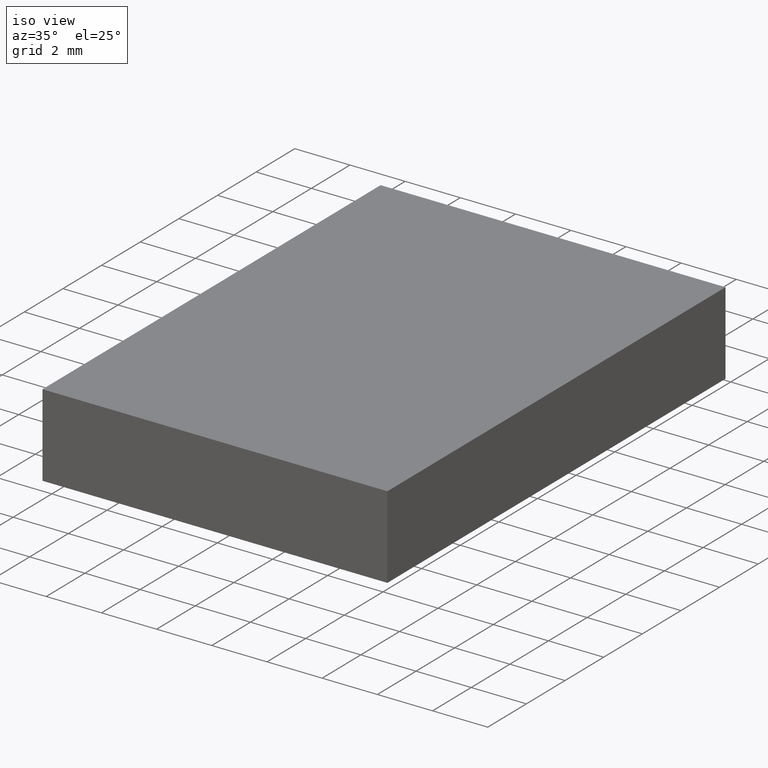
[diagram: clean part render]
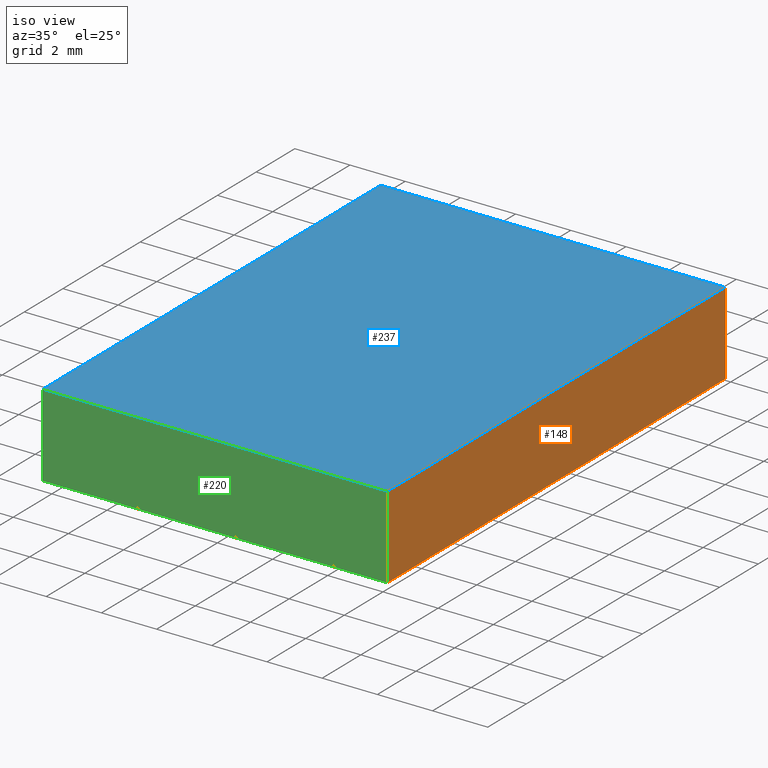
[diagram: same view with three faces highlighted in distinct colors, each labeled with its STEP entity id]
A machine part, iso view with three faces highlighted in distinct colors.
Their STEP definitions:

[orange] entity #148 — the highlighted planar face has unit normal (-1, -0, 0).
#7 = LINE ( 'NONE', #245, #56 ) ;
#20 = LINE ( 'NONE', #299, #270 ) ;
#25 = CARTESIAN_POINT ( 'NONE',  ( 6.148373983739839200, 7.520325203252024700, 0.0000000000000000000 ) ) ;
#32 = LINE ( 'NONE', #266, #207 ) ;
#44 = EDGE_CURVE ( 'NONE', #196, #201, #20, .T. ) ;
#52 = ORIENTED_EDGE ( 'NONE', *, *, #121, .T. ) ;
#56 = VECTOR ( 'NONE', #202, 1000.000000000000000 ) ;
#69 = DIRECTION ( 'NONE',  ( -4.956352788505162800E-017, 1.000000000000000000, -0.0000000000000000000 ) ) ;
#114 = AXIS2_PLACEMENT_3D ( 'NONE', #118, #198, #286 ) ;
#118 = CARTESIAN_POINT ( 'NONE',  ( 6.148373983739839200, 7.520325203252024700, 3.000000000000000000 ) ) ;
#121 = EDGE_CURVE ( 'NONE', #201, #285, #183, .T. ) ;
#126 = DIRECTION ( 'NONE',  ( -4.956352788505162800E-017, 1.000000000000000000, -0.0000000000000000000 ) ) ;
#137 = DIRECTION ( 'NONE',  ( -0.0000000000000000000, -0.0000000000000000000, -1.000000000000000000 ) ) ;
#140 = EDGE_CURVE ( 'NONE', #196, #264, #32, .T. ) ;
#145 = CARTESIAN_POINT ( 'NONE',  ( 6.148373983739839200, 7.520325203252024700, 0.0000000000000000000 ) ) ;
#148 = ADVANCED_FACE ( 'NONE', ( #155 ), #306, .F. ) ;
#155 = FACE_OUTER_BOUND ( 'NONE', #275, .T. ) ;
#169 = CARTESIAN_POINT ( 'NONE',  ( 6.148373983739840100, -9.979674796747977100, 0.0000000000000000000 ) ) ;
#183 = LINE ( 'NONE', #145, #236 ) ;
#184 = ORIENTED_EDGE ( 'NONE', *, *, #199, .F. ) ;
#194 = CARTESIAN_POINT ( 'NONE',  ( 6.148373983739840100, -9.979674796747977100, 3.000000000000000000 ) ) ;
#196 = VERTEX_POINT ( 'NONE', #194 ) ;
#198 = DIRECTION ( 'NONE',  ( -1.000000000000000000, -4.956352788505162800E-017, 0.0000000000000000000 ) ) ;
#199 = EDGE_CURVE ( 'NONE', #264, #285, #7, .T. ) ;
#201 = VERTEX_POINT ( 'NONE', #169 ) ;
#202 = DIRECTION ( 'NONE',  ( -0.0000000000000000000, -0.0000000000000000000, -1.000000000000000000 ) ) ;
#207 = VECTOR ( 'NONE', #126, 1000.000000000000000 ) ;
#213 = ORIENTED_EDGE ( 'NONE', *, *, #140, .F. ) ;
#224 = ORIENTED_EDGE ( 'NONE', *, *, #44, .T. ) ;
#236 = VECTOR ( 'NONE', #69, 1000.000000000000000 ) ;
#245 = CARTESIAN_POINT ( 'NONE',  ( 6.148373983739839200, 7.520325203252024700, 3.000000000000000000 ) ) ;
#264 = VERTEX_POINT ( 'NONE', #268 ) ;
#266 = CARTESIAN_POINT ( 'NONE',  ( 6.148373983739839200, 7.520325203252024700, 3.000000000000000000 ) ) ;
#268 = CARTESIAN_POINT ( 'NONE',  ( 6.148373983739839200, 7.520325203252024700, 3.000000000000000000 ) ) ;
#270 = VECTOR ( 'NONE', #137, 1000.000000000000000 ) ;
#275 = EDGE_LOOP ( 'NONE', ( #52, #184, #213, #224 ) ) ;
#285 = VERTEX_POINT ( 'NONE', #25 ) ;
#286 = DIRECTION ( 'NONE',  ( 4.956352788505162800E-017, -1.000000000000000000, 0.0000000000000000000 ) ) ;
#299 = CARTESIAN_POINT ( 'NONE',  ( 6.148373983739840100, -9.979674796747977100, 3.000000000000000000 ) ) ;
#306 = PLANE ( 'NONE',  #114 ) ;

[blue] entity #237 — the highlighted planar face has unit normal (-0, 0, 1).
#15 = CARTESIAN_POINT ( 'NONE',  ( -6.351626016260162500, 7.520325203252024700, 3.000000000000000000 ) ) ;
#18 = CARTESIAN_POINT ( 'NONE',  ( -6.351626016260160800, -9.979674796747977100, 3.000000000000000000 ) ) ;
#32 = LINE ( 'NONE', #266, #207 ) ;
#48 = LINE ( 'NONE', #15, #293 ) ;
#61 = ORIENTED_EDGE ( 'NONE', *, *, #214, .T. ) ;
#62 = EDGE_CURVE ( 'NONE', #68, #164, #48, .T. ) ;
#65 = CARTESIAN_POINT ( 'NONE',  ( -6.351626016260162500, 7.520325203252024700, 3.000000000000000000 ) ) ;
#68 = VERTEX_POINT ( 'NONE', #65 ) ;
#70 = EDGE_CURVE ( 'NONE', #264, #68, #138, .T. ) ;
#76 = VECTOR ( 'NONE', #247, 1000.000000000000000 ) ;
#85 = ORIENTED_EDGE ( 'NONE', *, *, #140, .T. ) ;
#92 = CARTESIAN_POINT ( 'NONE',  ( -6.351626016260160800, -9.979674796747977100, 3.000000000000000000 ) ) ;
#113 = ORIENTED_EDGE ( 'NONE', *, *, #62, .T. ) ;
#126 = DIRECTION ( 'NONE',  ( -4.956352788505162800E-017, 1.000000000000000000, -0.0000000000000000000 ) ) ;
#138 = LINE ( 'NONE', #234, #186 ) ;
#140 = EDGE_CURVE ( 'NONE', #196, #264, #32, .T. ) ;
#164 = VERTEX_POINT ( 'NONE', #18 ) ;
#168 = DIRECTION ( 'NONE',  ( -0.0000000000000000000, 0.0000000000000000000, 1.000000000000000000 ) ) ;
#186 = VECTOR ( 'NONE', #219, 1000.000000000000000 ) ;
#188 = DIRECTION ( 'NONE',  ( 9.912705577010325500E-017, -1.000000000000000000, 0.0000000000000000000 ) ) ;
#194 = CARTESIAN_POINT ( 'NONE',  ( 6.148373983739840100, -9.979674796747977100, 3.000000000000000000 ) ) ;
#196 = VERTEX_POINT ( 'NONE', #194 ) ;
#207 = VECTOR ( 'NONE', #126, 1000.000000000000000 ) ;
#214 = EDGE_CURVE ( 'NONE', #164, #196, #308, .T. ) ;
#218 = EDGE_LOOP ( 'NONE', ( #113, #61, #85, #250 ) ) ;
#219 = DIRECTION ( 'NONE',  ( -1.000000000000000000, -0.0000000000000000000, -0.0000000000000000000 ) ) ;
#221 = FACE_OUTER_BOUND ( 'NONE', #218, .T. ) ;
#225 = AXIS2_PLACEMENT_3D ( 'NONE', #246, #168, #313 ) ;
#234 = CARTESIAN_POINT ( 'NONE',  ( -6.351626016260162500, 7.520325203252024700, 3.000000000000000000 ) ) ;
#237 = ADVANCED_FACE ( 'NONE', ( #221 ), #267, .T. ) ;
#246 = CARTESIAN_POINT ( 'NONE',  ( 0.0000000000000000000, 0.0000000000000000000, 3.000000000000000000 ) ) ;
#247 = DIRECTION ( 'NONE',  ( 1.000000000000000000, 0.0000000000000000000, 0.0000000000000000000 ) ) ;
#250 = ORIENTED_EDGE ( 'NONE', *, *, #70, .T. ) ;
#264 = VERTEX_POINT ( 'NONE', #268 ) ;
#266 = CARTESIAN_POINT ( 'NONE',  ( 6.148373983739839200, 7.520325203252024700, 3.000000000000000000 ) ) ;
#267 = PLANE ( 'NONE',  #225 ) ;
#268 = CARTESIAN_POINT ( 'NONE',  ( 6.148373983739839200, 7.520325203252024700, 3.000000000000000000 ) ) ;
#293 = VECTOR ( 'NONE', #188, 1000.000000000000000 ) ;
#308 = LINE ( 'NONE', #92, #76 ) ;
#313 = DIRECTION ( 'NONE',  ( 1.000000000000000000, 0.0000000000000000000, 0.0000000000000000000 ) ) ;

[green] entity #220 — the highlighted planar face has unit normal (0, 1, 0).
#10 = VERTEX_POINT ( 'NONE', #37 ) ;
#18 = CARTESIAN_POINT ( 'NONE',  ( -6.351626016260160800, -9.979674796747977100, 3.000000000000000000 ) ) ;
#19 = VECTOR ( 'NONE', #50, 1000.000000000000000 ) ;
#20 = LINE ( 'NONE', #299, #270 ) ;
#24 = ORIENTED_EDGE ( 'NONE', *, *, #214, .F. ) ;
#29 = ORIENTED_EDGE ( 'NONE', *, *, #44, .F. ) ;
#37 = CARTESIAN_POINT ( 'NONE',  ( -6.351626016260160800, -9.979674796747977100, 0.0000000000000000000 ) ) ;
#44 = EDGE_CURVE ( 'NONE', #196, #201, #20, .T. ) ;
#50 = DIRECTION ( 'NONE',  ( 1.000000000000000000, 0.0000000000000000000, 0.0000000000000000000 ) ) ;
#76 = VECTOR ( 'NONE', #247, 1000.000000000000000 ) ;
#92 = CARTESIAN_POINT ( 'NONE',  ( -6.351626016260160800, -9.979674796747977100, 3.000000000000000000 ) ) ;
#101 = CARTESIAN_POINT ( 'NONE',  ( -6.351626016260160800, -9.979674796747977100, 0.0000000000000000000 ) ) ;
#103 = AXIS2_PLACEMENT_3D ( 'NONE', #314, #151, #291 ) ;
#128 = PLANE ( 'NONE',  #103 ) ;
#137 = DIRECTION ( 'NONE',  ( -0.0000000000000000000, -0.0000000000000000000, -1.000000000000000000 ) ) ;
#150 = VECTOR ( 'NONE', #311, 1000.000000000000000 ) ;
#151 = DIRECTION ( 'NONE',  ( 0.0000000000000000000, 1.000000000000000000, 0.0000000000000000000 ) ) ;
#156 = ORIENTED_EDGE ( 'NONE', *, *, #257, .T. ) ;
#161 = EDGE_CURVE ( 'NONE', #164, #10, #216, .T. ) ;
#164 = VERTEX_POINT ( 'NONE', #18 ) ;
#169 = CARTESIAN_POINT ( 'NONE',  ( 6.148373983739840100, -9.979674796747977100, 0.0000000000000000000 ) ) ;
#179 = FACE_OUTER_BOUND ( 'NONE', #297, .T. ) ;
#192 = CARTESIAN_POINT ( 'NONE',  ( -6.351626016260160800, -9.979674796747977100, 3.000000000000000000 ) ) ;
#194 = CARTESIAN_POINT ( 'NONE',  ( 6.148373983739840100, -9.979674796747977100, 3.000000000000000000 ) ) ;
#196 = VERTEX_POINT ( 'NONE', #194 ) ;
#200 = LINE ( 'NONE', #101, #19 ) ;
#201 = VERTEX_POINT ( 'NONE', #169 ) ;
#214 = EDGE_CURVE ( 'NONE', #164, #196, #308, .T. ) ;
#216 = LINE ( 'NONE', #192, #150 ) ;
#220 = ADVANCED_FACE ( 'NONE', ( #179 ), #128, .F. ) ;
#247 = DIRECTION ( 'NONE',  ( 1.000000000000000000, 0.0000000000000000000, 0.0000000000000000000 ) ) ;
#257 = EDGE_CURVE ( 'NONE', #10, #201, #200, .T. ) ;
#270 = VECTOR ( 'NONE', #137, 1000.000000000000000 ) ;
#278 = ORIENTED_EDGE ( 'NONE', *, *, #161, .T. ) ;
#291 = DIRECTION ( 'NONE',  ( 0.0000000000000000000, -0.0000000000000000000, 1.000000000000000000 ) ) ;
#297 = EDGE_LOOP ( 'NONE', ( #156, #29, #24, #278 ) ) ;
#299 = CARTESIAN_POINT ( 'NONE',  ( 6.148373983739840100, -9.979674796747977100, 3.000000000000000000 ) ) ;
#308 = LINE ( 'NONE', #92, #76 ) ;
#311 = DIRECTION ( 'NONE',  ( -0.0000000000000000000, -0.0000000000000000000, -1.000000000000000000 ) ) ;
#314 = CARTESIAN_POINT ( 'NONE',  ( -6.351626016260160800, -9.979674796747977100, 3.000000000000000000 ) ) ;